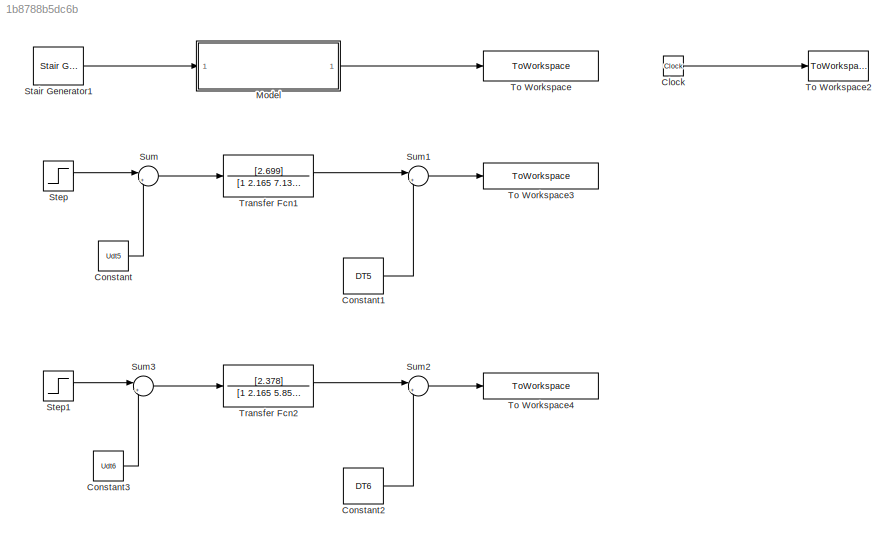
MODEL slx_1b8788b5dc6b
KIND model
CONFIG AbsTol = auto
CONFIG EnableMultiTasking = off
CONFIG FixedStep = auto
CONFIG MaxStep = auto
CONFIG MinStep = auto
CONFIG RelTol = 1e-3
CONFIG SampleTimeConstraint = Unconstrained
CONFIG SolverName = VariableStepAuto
CONFIG StartTime = 0.0
CONFIG StopTime = 140
BLOCK [Clock] Clock
BLOCK [Constant] Constant
  Value = Udt5
BLOCK [Constant] Constant1
  Value = DT5
BLOCK [Constant] Constant2
  Value = DT6
BLOCK [Constant] Constant3
  Value = Udt6
BLOCK [ModelReference] Model
  ModelNameDialog = modelX2.slx
  ModelReferenceVersion = 1.9
  Ports = [1, 1]
BLOCK [Reference] Stair Generator1  REF=powerlib_meascontrol/Pulse & Signal
Generators/Stair
Generator
  Ports = [0, 1]
  SourceBlock = powerlib_meascontrol/Pulse & Signal\nGenerators/Stair\nGenerator
  SourceProductBaseCode = PS
  SourceType = Stair Generator
BLOCK [Step] Step
  After = 5.5
  Before = 5
  SampleTime = 0
  Time = 20
BLOCK [Step] Step1
  After = 6.5
  Before = 6
  SampleTime = 0
  Time = 60
BLOCK [Sum] Sum
  Inputs = |+-
  Ports = [2, 1]
BLOCK [Sum] Sum1
  Inputs = |++
  Ports = [2, 1]
BLOCK [Sum] Sum2
  Inputs = |++
  Ports = [2, 1]
BLOCK [Sum] Sum3
  Inputs = |+-
  Ports = [2, 1]
BLOCK [ToWorkspace] To Workspace
  FixptAsFi = on
  MaxDataPoints = inf
  Ports = [1]
  SampleTime = -1
  VariableName = NelinearniOdziv
BLOCK [ToWorkspace] To Workspace2
  FixptAsFi = on
  MaxDataPoints = inf
  Ports = [1]
  SampleTime = -1
  VariableName = time
BLOCK [ToWorkspace] To Workspace3
  FixptAsFi = on
  MaxDataPoints = inf
  Ports = [1]
  SampleTime = -1
  VariableName = DT5
BLOCK [ToWorkspace] To Workspace4
  FixptAsFi = on
  MaxDataPoints = inf
  Ports = [1]
  SampleTime = -1
  VariableName = DT6
BLOCK [TransferFcn] Transfer Fcn1
  Denominator = [1 2.165 7.135]
  Numerator = [2.699]
BLOCK [TransferFcn] Transfer Fcn2
  Denominator = [1 2.165 5.857]
  Numerator = [2.378]
LINE Clock:1 -> To Workspace2:1
LINE Constant1:1 -> Sum1:2
LINE Constant2:1 -> Sum2:2
LINE Constant3:1 -> Sum3:2
LINE Constant:1 -> Sum:2
LINE Model:1 -> To Workspace:1
LINE Stair Generator1:1 -> Model:1
LINE Step1:1 -> Sum3:1
LINE Step:1 -> Sum:1
LINE Sum1:1 -> To Workspace3:1
LINE Sum2:1 -> To Workspace4:1
LINE Sum3:1 -> Transfer Fcn2:1
LINE Sum:1 -> Transfer Fcn1:1
LINE Transfer Fcn1:1 -> Sum1:1
LINE Transfer Fcn2:1 -> Sum2:1
